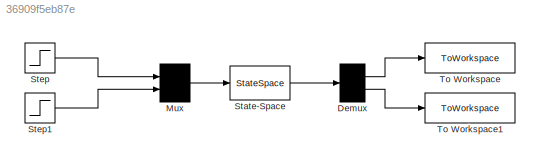
MODEL slx_36909f5eb87e
KIND model
CONFIG AbsTol = auto
CONFIG EnableMultiTasking = off
CONFIG FixedStep = auto
CONFIG MaxStep = auto
CONFIG MinStep = auto
CONFIG RelTol = 1e-3
CONFIG SampleTimeConstraint = Unconstrained
CONFIG Solver = VariableStepAuto
CONFIG SolverName = VariableStepAuto
CONFIG StartTime = 0.0
CONFIG StopTime = 10.0
BLOCK [Demux] Demux
  Outputs = 2
  Ports = [1, 2]
BLOCK [Mux] Mux
  DisplayOption = bar
  Inputs = 2
  Ports = [2, 1]
BLOCK [StateSpace] State-Space
  A = A
  B = B
  C = C
  D = D
  InitialCondition = h
  Ports = [1, 1]
BLOCK [Step] Step
  After = fwe1+dfwe1
  Before = fwe1
  SampleTime = 0
  Time = 5
BLOCK [Step] Step1
  After = fwe2+dfwe2
  Before = fwe2
  SampleTime = 0
  Time = 5
BLOCK [ToWorkspace] To Workspace
  FixptAsFi = on
  MaxDataPoints = inf
  Ports = [1]
  SampleTime = -1
  VariableName = h1
BLOCK [ToWorkspace] To Workspace1
  FixptAsFi = on
  MaxDataPoints = inf
  Ports = [1]
  SampleTime = -1
  VariableName = h2
LINE Demux:1 -> To Workspace:1
LINE Demux:2 -> To Workspace1:1
LINE Mux:1 -> State-Space:1
LINE State-Space:1 -> Demux:1
LINE Step1:1 -> Mux:2
LINE Step:1 -> Mux:1
